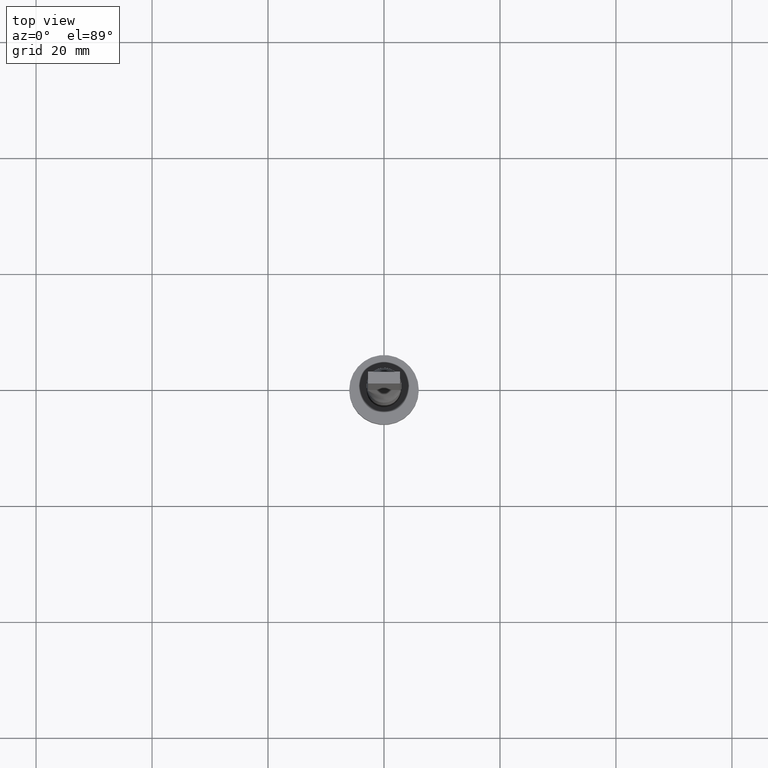
[diagram: clean part render]
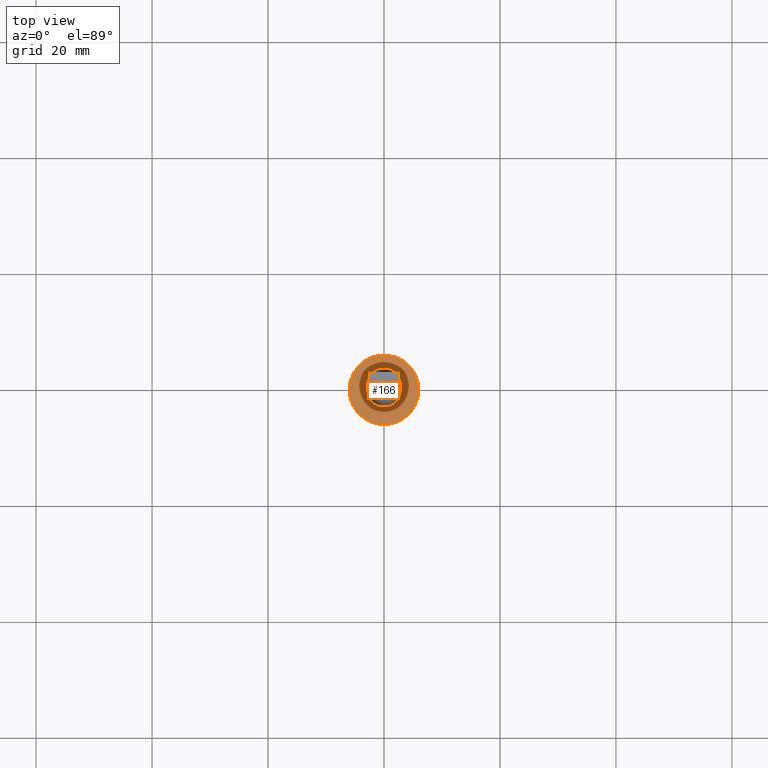
[diagram: same view with one face highlighted and labeled with its STEP entity id]
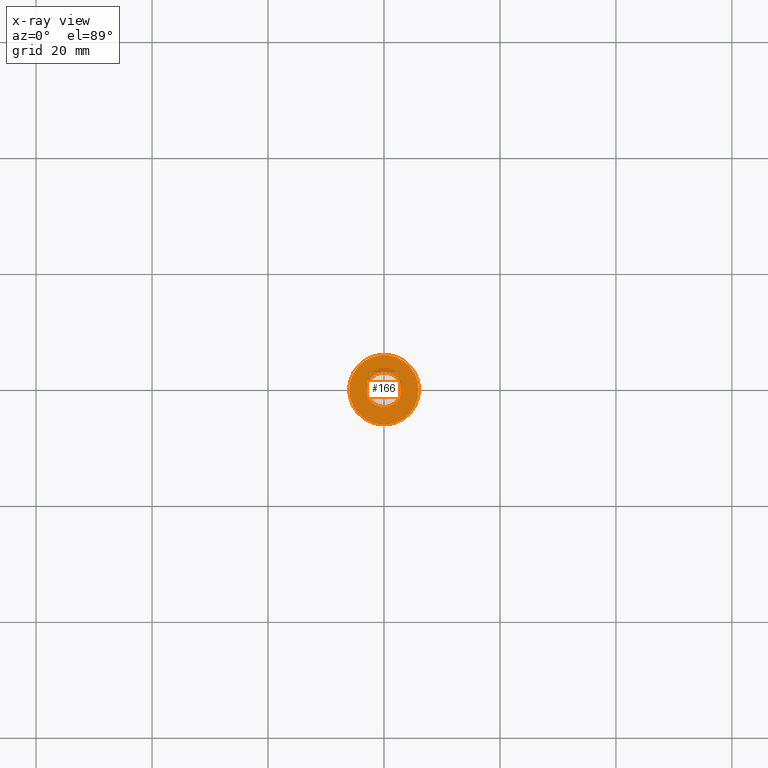
[diagram: x-ray of the same camera — body ghosted, the highlighted face saturated]
A machine part, top view. The second image highlights one B-rep face of the part: STEP entity #166.
The next image is the same camera in x-ray: the body ghosted, the highlighted face saturated — about 7% of this face is hidden behind the body in this view.
In plain terms, the highlighted planar face has unit normal (0, 0, 1).
Its self-contained STEP definition (entity closure, byte-faithful):
#5 = DIRECTION ( 'NONE',  ( 0.000000000000000000, 0.000000000000000000, 1.000000000000000000 ) ) ;
#18 = PLANE ( 'NONE',  #385 ) ;
#23 = VERTEX_POINT ( 'NONE', #453 ) ;
#38 = ORIENTED_EDGE ( 'NONE', *, *, #530, .F. ) ;
#42 = EDGE_LOOP ( 'NONE', ( #461, #73 ) ) ;
#63 = CARTESIAN_POINT ( 'NONE',  ( 6.000000000000000888, 7.347880794884120722E-16, 5.000000000000000000 ) ) ;
#73 = ORIENTED_EDGE ( 'NONE', *, *, #134, .T. ) ;
#93 = DIRECTION ( 'NONE',  ( 1.000000000000000000, 0.000000000000000000, 0.000000000000000000 ) ) ;
#134 = EDGE_CURVE ( 'NONE', #167, #23, #561, .T. ) ;
#165 = VERTEX_POINT ( 'NONE', #227 ) ;
#166 = ADVANCED_FACE ( 'NONE', ( #420, #374 ), #18, .T. ) ;
#167 = VERTEX_POINT ( 'NONE', #63 ) ;
#186 = CARTESIAN_POINT ( 'NONE',  ( 0.000000000000000000, 0.000000000000000000, 5.000000000000000000 ) ) ;
#208 = CIRCLE ( 'NONE', #405, 3.000000000000000444 ) ;
#226 = CARTESIAN_POINT ( 'NONE',  ( 0.000000000000000000, 0.000000000000000000, 5.000000000000000000 ) ) ;
#227 = CARTESIAN_POINT ( 'NONE',  ( -3.000000000000000444, 0.000000000000000000, 5.000000000000000000 ) ) ;
#300 = AXIS2_PLACEMENT_3D ( 'NONE', #502, #505, #93 ) ;
#316 = DIRECTION ( 'NONE',  ( 1.000000000000000000, 0.000000000000000000, 0.000000000000000000 ) ) ;
#329 = DIRECTION ( 'NONE',  ( 0.000000000000000000, 0.000000000000000000, 1.000000000000000000 ) ) ;
#363 = DIRECTION ( 'NONE',  ( 0.000000000000000000, 0.000000000000000000, 1.000000000000000000 ) ) ;
#367 = CIRCLE ( 'NONE', #472, 6.000000000000000888 ) ;
#374 = FACE_OUTER_BOUND ( 'NONE', #42, .T. ) ;
#385 = AXIS2_PLACEMENT_3D ( 'NONE', #186, #329, #510 ) ;
#396 = EDGE_LOOP ( 'NONE', ( #467, #38 ) ) ;
#405 = AXIS2_PLACEMENT_3D ( 'NONE', #226, #363, #316 ) ;
#417 = CARTESIAN_POINT ( 'NONE',  ( 3.000000000000000444, 3.673940397442059868E-16, 5.000000000000000000 ) ) ;
#420 = FACE_BOUND ( 'NONE', #396, .T. ) ;
#428 = VERTEX_POINT ( 'NONE', #417 ) ;
#447 = DIRECTION ( 'NONE',  ( 1.000000000000000000, 0.000000000000000000, 0.000000000000000000 ) ) ;
#453 = CARTESIAN_POINT ( 'NONE',  ( -6.000000000000000888, 0.000000000000000000, 5.000000000000000000 ) ) ;
#461 = ORIENTED_EDGE ( 'NONE', *, *, #548, .T. ) ;
#467 = ORIENTED_EDGE ( 'NONE', *, *, #485, .F. ) ;
#472 = AXIS2_PLACEMENT_3D ( 'NONE', #532, #5, #447 ) ;
#485 = EDGE_CURVE ( 'NONE', #165, #428, #208, .T. ) ;
#502 = CARTESIAN_POINT ( 'NONE',  ( 0.000000000000000000, 0.000000000000000000, 5.000000000000000000 ) ) ;
#505 = DIRECTION ( 'NONE',  ( 0.000000000000000000, 0.000000000000000000, 1.000000000000000000 ) ) ;
#510 = DIRECTION ( 'NONE',  ( 1.000000000000000000, 0.000000000000000000, -0.000000000000000000 ) ) ;
#520 = DIRECTION ( 'NONE',  ( 1.000000000000000000, 0.000000000000000000, 0.000000000000000000 ) ) ;
#529 = DIRECTION ( 'NONE',  ( 0.000000000000000000, 0.000000000000000000, 1.000000000000000000 ) ) ;
#530 = EDGE_CURVE ( 'NONE', #428, #165, #543, .T. ) ;
#532 = CARTESIAN_POINT ( 'NONE',  ( 0.000000000000000000, 0.000000000000000000, 5.000000000000000000 ) ) ;
#543 = CIRCLE ( 'NONE', #554, 3.000000000000000444 ) ;
#548 = EDGE_CURVE ( 'NONE', #23, #167, #367, .T. ) ;
#554 = AXIS2_PLACEMENT_3D ( 'NONE', #577, #529, #520 ) ;
#561 = CIRCLE ( 'NONE', #300, 6.000000000000000888 ) ;
#577 = CARTESIAN_POINT ( 'NONE',  ( 0.000000000000000000, 0.000000000000000000, 5.000000000000000000 ) ) ;